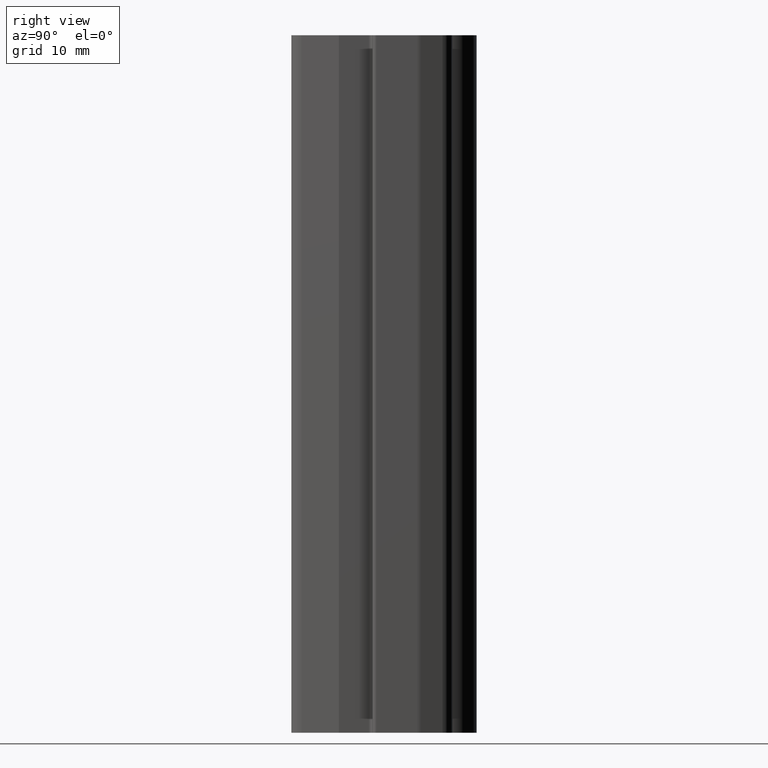
[diagram: clean part render]
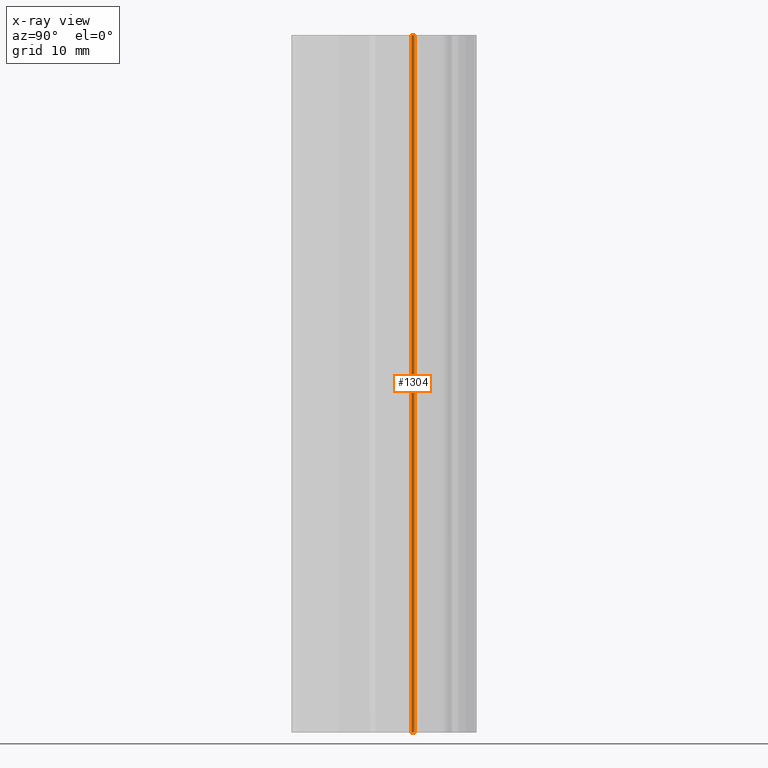
[diagram: x-ray — body ghosted, one internal face saturated and labeled with its STEP entity id]
A machine part, right view, then the same camera in x-ray: the body is ghosted and one INTERNAL B-rep face — a face not visible from any outside direction — is saturated and labeled: STEP entity #1304.
In plain terms, the highlighted cylindrical surface (edge-blend (fillet) strip) has radius 0.3 mm, axis along (0, 0, 1).
Its self-contained STEP definition (entity closure, byte-faithful):
#20=CYLINDRICAL_SURFACE('',#1441,0.3);
#65=FACE_OUTER_BOUND('',#133,.T.);
#133=EDGE_LOOP('',(#909,#910,#911,#912));
#226=LINE('',#2110,#336);
#227=LINE('',#2114,#337);
#336=VECTOR('',#1681,10.);
#337=VECTOR('',#1686,10.);
#418=CIRCLE('',#1394,0.3);
#457=CIRCLE('',#1442,0.3);
#503=VERTEX_POINT('',#1968);
#504=VERTEX_POINT('',#1970);
#565=VERTEX_POINT('',#2108);
#566=VERTEX_POINT('',#2112);
#631=EDGE_CURVE('',#503,#504,#418,.T.);
#701=EDGE_CURVE('',#565,#503,#226,.T.);
#702=EDGE_CURVE('',#566,#565,#457,.T.);
#703=EDGE_CURVE('',#566,#504,#227,.T.);
#909=ORIENTED_EDGE('',*,*,#701,.F.);
#910=ORIENTED_EDGE('',*,*,#702,.F.);
#911=ORIENTED_EDGE('',*,*,#703,.T.);
#912=ORIENTED_EDGE('',*,*,#631,.F.);
#1304=ADVANCED_FACE('',(#65),#20,.T.);
#1394=AXIS2_PLACEMENT_3D('',#1971,#1556,#1557);
#1441=AXIS2_PLACEMENT_3D('',#2111,#1682,#1683);
#1442=AXIS2_PLACEMENT_3D('',#2113,#1684,#1685);
#1556=DIRECTION('center_axis',(0.,0.,-1.));
#1557=DIRECTION('ref_axis',(0.622511223334033,-0.782610871904528,0.));
#1681=DIRECTION('',(0.,0.,-1.));
#1682=DIRECTION('center_axis',(0.,0.,1.));
#1683=DIRECTION('ref_axis',(0.622511223334033,-0.782610871904528,0.));
#1684=DIRECTION('center_axis',(0.,0.,1.));
#1685=DIRECTION('ref_axis',(0.622511223334033,-0.782610871904528,0.));
#1686=DIRECTION('',(0.,0.,-1.));
#1968=CARTESIAN_POINT('',(3.08717744931448,-4.35996965544987,-50.));
#1970=CARTESIAN_POINT('',(3.11255611667024,-3.91305435952256,-50.));
#1971=CARTESIAN_POINT('Origin',(3.29930948367045,-4.14783762109392,-50.));
#2108=CARTESIAN_POINT('',(3.08717744931448,-4.35996965544987,50.));
#2110=CARTESIAN_POINT('',(3.08717744931448,-4.35996965544987,0.));
#2111=CARTESIAN_POINT('Origin',(3.29930948367045,-4.14783762109392,0.));
#2112=CARTESIAN_POINT('',(3.11255611667024,-3.91305435952256,50.));
#2113=CARTESIAN_POINT('Origin',(3.29930948367045,-4.14783762109392,50.));
#2114=CARTESIAN_POINT('',(3.11255611667024,-3.91305435952256,0.));